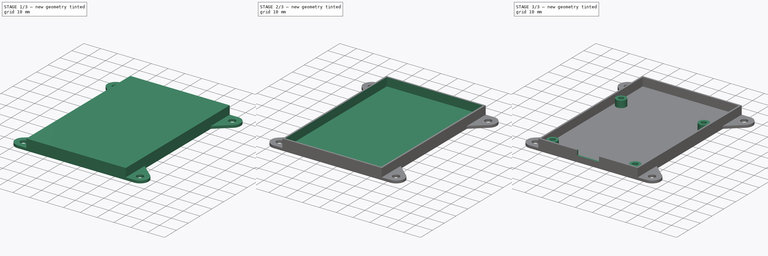
[diagram: build sequence overview — one tinted view per stage of 3, left to right]
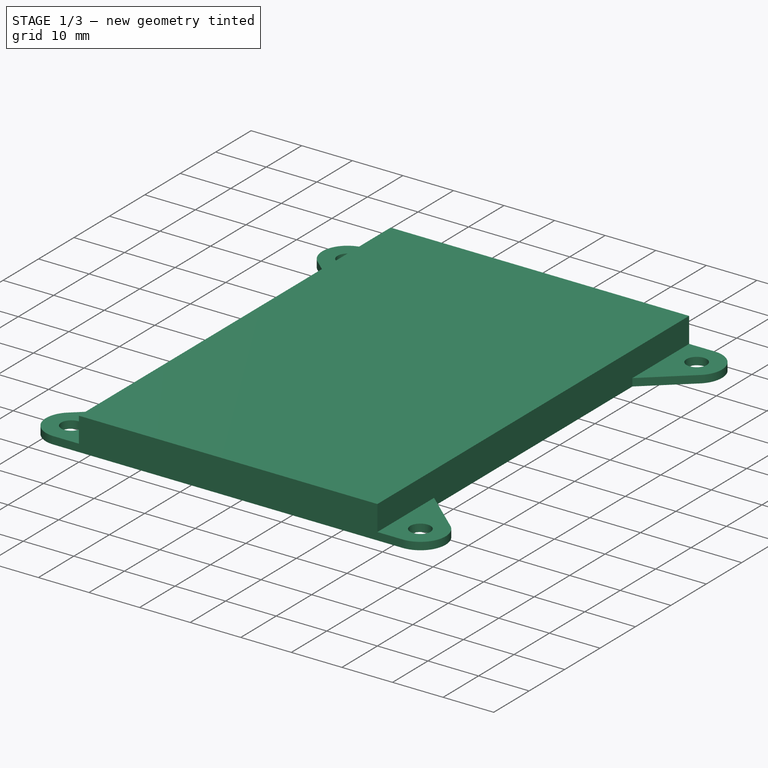
[diagram: stage 1 of 3 — iso view after this stage's code; geometry added in this stage tinted green]
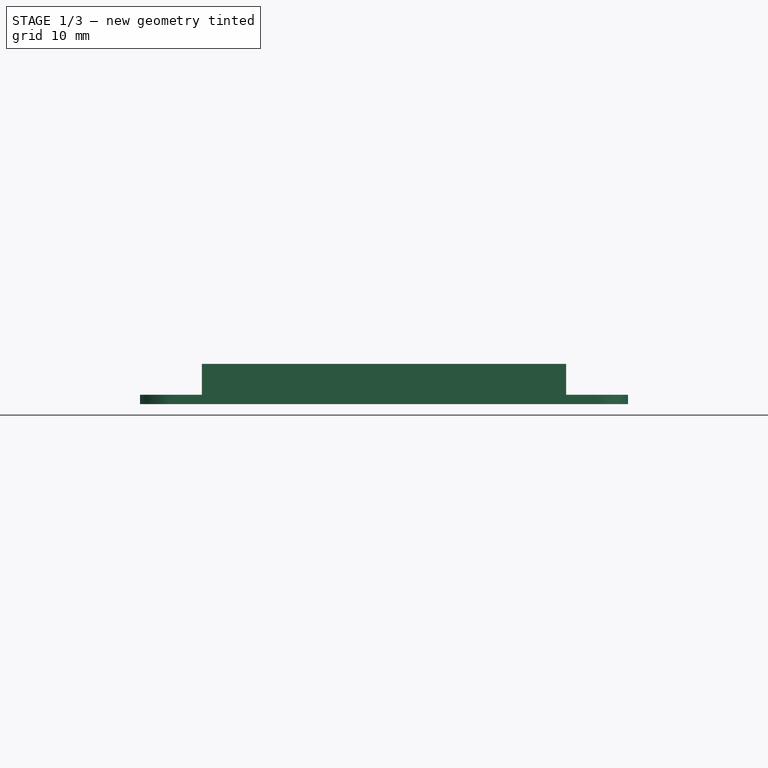
[diagram: stage 1 of 3 — front view after this stage's code; geometry added in this stage tinted green]
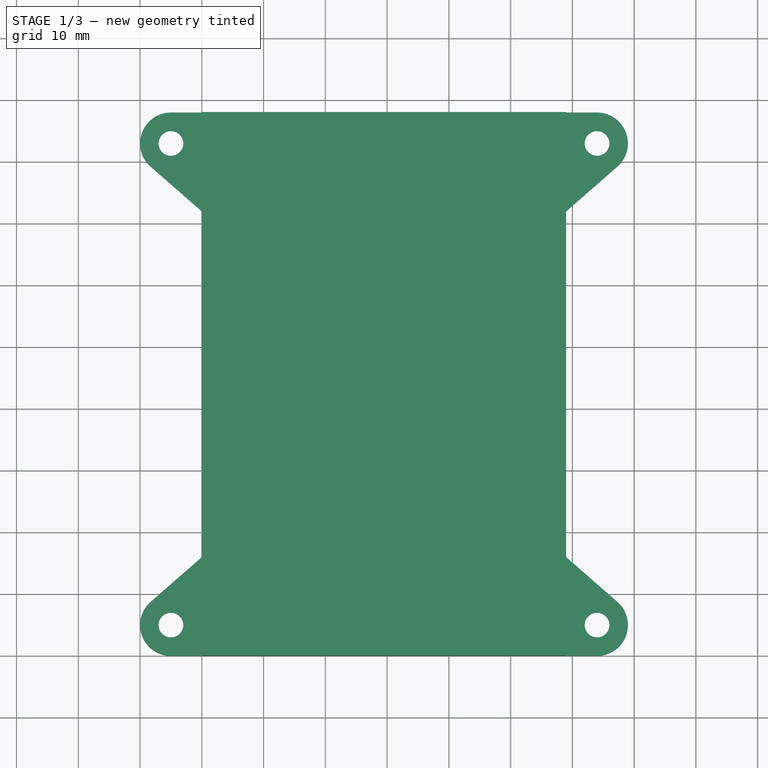
[diagram: stage 1 of 3 — top view after this stage's code; geometry added in this stage tinted green]
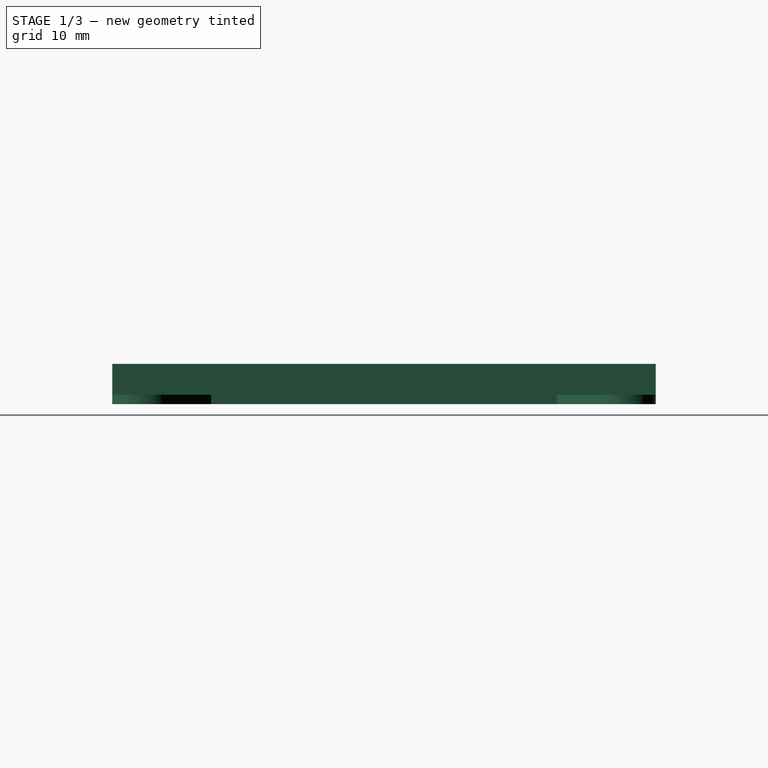
[diagram: stage 1 of 3 — right view after this stage's code; geometry added in this stage tinted green]
FCSTD DOCUMENT  (FreeCAD 0.16R6109 (Git))
Label: CaseBottom
License: All rights reserved
LicenseURL: http://en.wikipedia.org/wiki/All_rights_reserved
objects: Sketcher::SketchObject×5, PartDesign::Pad×3, PartDesign::Pocket×2
note: 15 computed .brp shape members not serialized (recipe doc carries the construction recipe); baked Part::Feature solids carry a one-line shape summary decoded from their .brp

FEATURE [Sketcher::SketchObject] Sketch
  sketch-geometry (24):
    g0: LineSegment StartX=0 StartY=0 StartZ=0 EndX=59 EndY=0 EndZ=0
    g1: LineSegment StartX=59 StartY=88 StartZ=0 EndX=0 EndY=88 EndZ=0
    g2: LineSegment StartX=0 StartY=72 StartZ=0 EndX=0 EndY=16 EndZ=0
    g3: ArcOfCircle CenterX=-5 CenterY=83 CenterZ=0 NormalX=0 NormalY=0 NormalZ=1 Radius=5 StartAngle=1.57079 EndAngle=3.92699
    g4: Circle CenterX=-5 CenterY=83 CenterZ=0 NormalX=0 NormalY=0 NormalZ=1 Radius=2
    g5: LineSegment StartX=-4.99998 StartY=88 StartZ=0 EndX=0 EndY=88 EndZ=0
    g6: LineSegment StartX=-8.53553 StartY=79.4645 StartZ=0 EndX=0 EndY=72 EndZ=0
    g7: LineSegment [constr] StartX=0 StartY=88 StartZ=0 EndX=-8.53553 EndY=79.4645 EndZ=0
    g8: ArcOfCircle CenterX=64 CenterY=83 CenterZ=0 NormalX=0 NormalY=0 NormalZ=1 Radius=5 StartAngle=5.49779 EndAngle=7.85399
    g9: Circle CenterX=64 CenterY=83 CenterZ=0 NormalX=0 NormalY=0 NormalZ=1 Radius=2
    g10: LineSegment [constr] StartX=59 StartY=88 StartZ=0 EndX=67.5355 EndY=79.4645 EndZ=0
    g11: LineSegment StartX=59 StartY=16 StartZ=0 EndX=59 EndY=72 EndZ=0
    g12: LineSegment StartX=59 StartY=88 StartZ=0 EndX=64 EndY=88 EndZ=0
    g13: LineSegment StartX=59 StartY=72 StartZ=0 EndX=67.5355 EndY=79.4645 EndZ=0
    g14: ArcOfCircle CenterX=-5 CenterY=5 CenterZ=0 NormalX=0 NormalY=0 NormalZ=1 Radius=5 StartAngle=2.35619 EndAngle=4.71239
    g15: LineSegment StartX=0 StartY=0 StartZ=0 EndX=-5 EndY=0 EndZ=0
    g16: LineSegment [constr] StartX=0 StartY=0 StartZ=0 EndX=-8.53553 EndY=8.53553 EndZ=0
    g17: LineSegment StartX=-8.53553 StartY=8.53553 StartZ=0 EndX=0 EndY=16 EndZ=0
    g18: Circle CenterX=-5 CenterY=5 CenterZ=0 NormalX=0 NormalY=0 NormalZ=1 Radius=2
    g19: ArcOfCircle CenterX=64 CenterY=5 CenterZ=0 NormalX=0 NormalY=0 NormalZ=1 Radius=5 StartAngle=4.71239 EndAngle=7.06858
    g20: LineSegment [constr] StartX=59 StartY=0 StartZ=0 EndX=67.5355 EndY=8.53553 EndZ=0
    g21: LineSegment StartX=64 StartY=0 StartZ=0 EndX=59 EndY=0 EndZ=0
    g22: Circle CenterX=64 CenterY=5 CenterZ=0 NormalX=0 NormalY=0 NormalZ=1 Radius=2
    g23: LineSegment StartX=59 StartY=16 StartZ=0 EndX=67.5355 EndY=8.53553 EndZ=0
  constraints (69):
    c: Horizontal(g0)
    c: Horizontal(g1)
    c: Vertical(g2)
    c: Coincident(g0,g-1)
    c: Distance(g1) = 59
    c: Radius(g3) = 5
    c: DistanceY(g3,g1) = 5
    c: Coincident(g4,g3)
    c: Radius(g4) = 2
    c: Coincident(g5,g1)
    c: Horizontal(g5)
    c: Coincident(g3,g5)
    c: DistanceY(g2,g1) = 16
    c: PointOnObject(g1,g-2)
    c: Coincident(g6,g3)
    c: Coincident(g6,g2)
    c: DistanceX(g3,g1) = 5
    c: Coincident(g7,g1)
    c: PointOnObject(g3,g7)
    c: PointOnObject(g3,g7)
    c: PointOnObject(g7,g6)
    c: Radius(g8) = 5
    c: Coincident(g9,g8)
    c: Radius(g9) = 2
    c: PointOnObject(g8,g10)
    c: Coincident(g10,g1)
    c: Vertical(g11)
    c: DistanceX(g8,g1) = -5
    c: DistanceY(g8,g1) = 5
    c: Coincident(g12,g1)
    c: Horizontal(g12)
    c: Coincident(g8,g10)
    c: Coincident(g8,g12)
    c: DistanceY(g11,g2) = 0
    c: DistanceX(g1,g11) = 0
    c: DistanceY(g1,g0) = -88
    c: Coincident(g11,g13)
    c: Coincident(g13,g8)
    c: Radius(g14) = 5
    c: DistanceX(g-1,g14) = -5
    c: DistanceY(g-1,g14) = 5
    c: Coincident(g15,g-1)
    c: Horizontal(g15)
    c: Coincident(g16,g-1)
    c: PointOnObject(g14,g16)
    c: PointOnObject(g17,g14)
    c: Coincident(g18,g14)
    c: Radius(g18) = 2
    c: PointOnObject(g14,g17)
    c: Coincident(g14,g15)
    c: Coincident(g2,g17)
    c: Coincident(g14,g16)
    c: DistanceY(g-1,g2) = 16
    c: DistanceX(g-1,g2) = 0
    c: Radius(g19) = 5
    c: DistanceX(g0,g19) = 5
    c: DistanceY(g19,g0) = -5
    c: Coincident(g20,g0)
    c: PointOnObject(g19,g20)
    c: Coincident(g21,g0)
    c: Horizontal(g21)
    c: Coincident(g22,g19)
    c: Radius(g22) = 2
    c: Coincident(g19,g21)
    c: Coincident(g19,g20)
    c: DistanceX(g11,g0) = 0
    c: Coincident(g23,g11)
    c: Coincident(g23,g19)
    c: DistanceY(g11,g0) = -16
FEATURE [PartDesign::Pad] Pad  label="BottomProfile"
  Length = 1.5
  Length2 = 100
  Sketch = -> Sketch
  Type = 0
FEATURE [Sketcher::SketchObject] Sketch001
  ExternalGeometry = -> [Pad]
  Placement = pos=(0,0,1.5) rot=(0,0,1;0rad)
  Support = -> Pad [Face22]
  sketch-geometry (4):
    g0: LineSegment StartX=0 StartY=88 StartZ=0 EndX=59 EndY=88 EndZ=0
    g1: LineSegment StartX=59 StartY=88 StartZ=0 EndX=59 EndY=0 EndZ=0
    g2: LineSegment StartX=59 StartY=0 StartZ=0 EndX=0 EndY=0 EndZ=0
    g3: LineSegment StartX=0 StartY=0 StartZ=0 EndX=0 EndY=88 EndZ=0
  constraints (10):
    c: Coincident(g0,g1)
    c: Coincident(g1,g2)
    c: Coincident(g2,g3)
    c: Coincident(g3,g0)
    c: Horizontal(g0)
    c: Horizontal(g2)
    c: Vertical(g1)
    c: Vertical(g3)
    c: Coincident(g0,g-3)
    c: Coincident(g1,g-4)
FEATURE [PartDesign::Pad] Pad001
  Length = 5
  Length2 = 100
  Sketch = -> Sketch001
  Type = 0
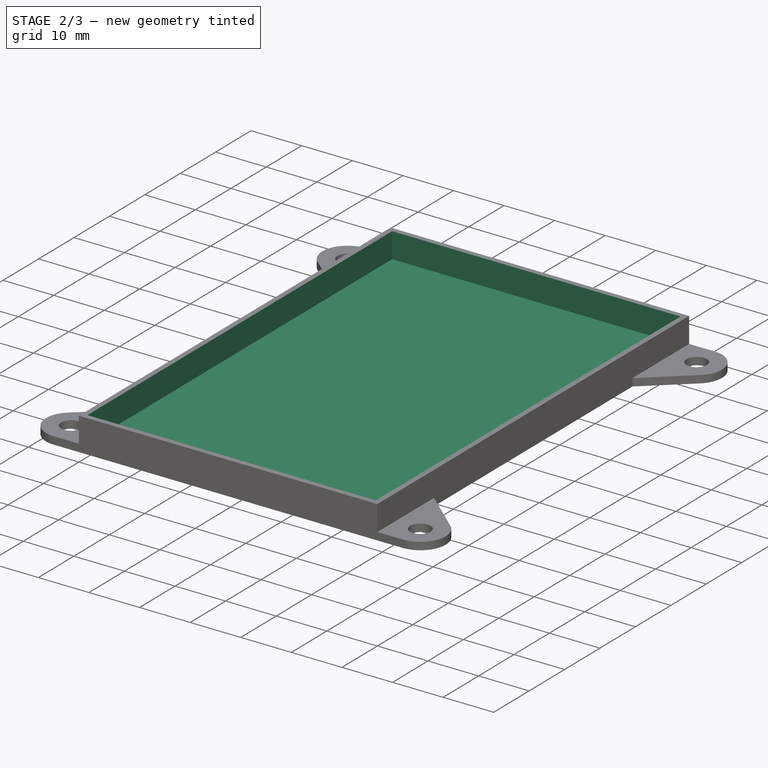
[diagram: stage 2 of 3 — iso view after this stage's code; geometry added in this stage tinted green]
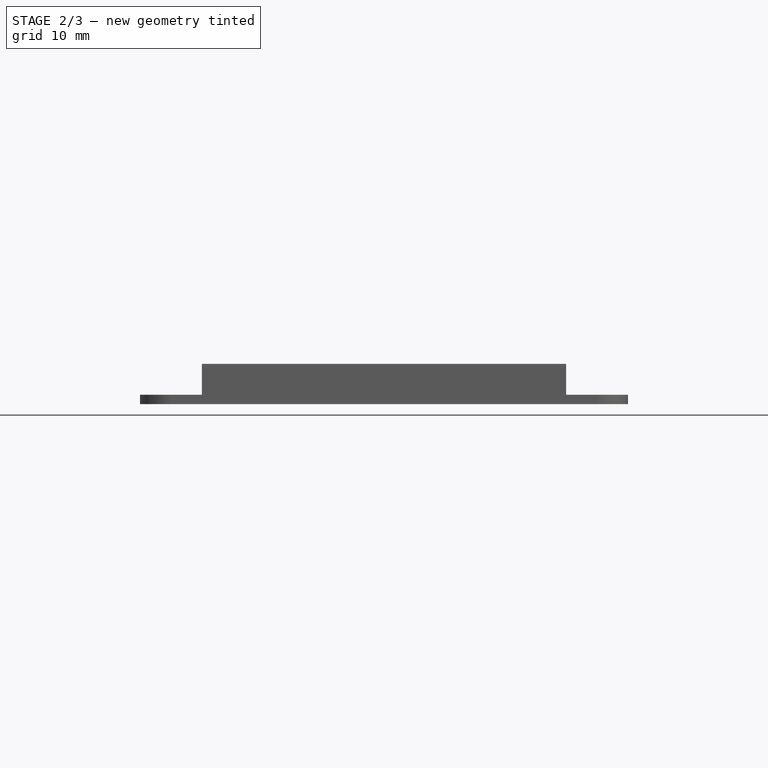
[diagram: stage 2 of 3 — front view after this stage's code; geometry added in this stage tinted green]
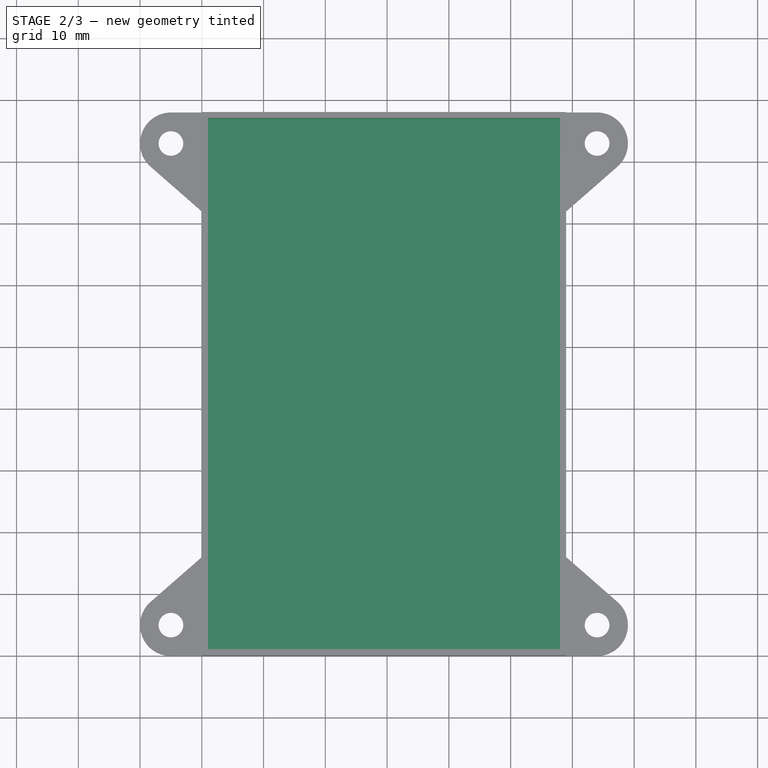
[diagram: stage 2 of 3 — top view after this stage's code; geometry added in this stage tinted green]
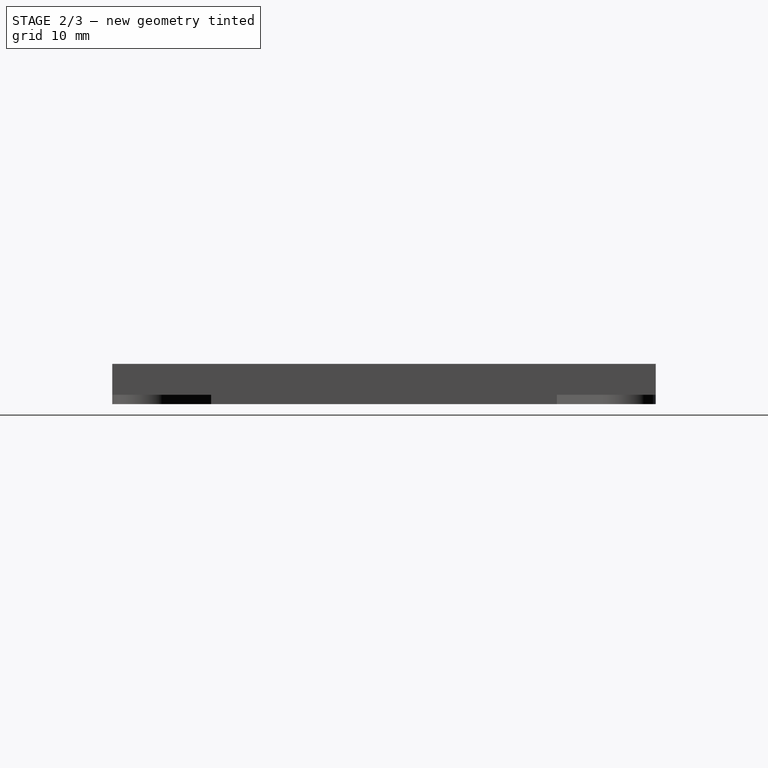
[diagram: stage 2 of 3 — right view after this stage's code; geometry added in this stage tinted green]
FEATURE [Sketcher::SketchObject] Sketch002
  ExternalGeometry = -> [Pad001]
  Placement = pos=(0,0,6.5) rot=(0,0,1;0rad)
  Support = -> Pad001 [Face30]
  sketch-geometry (4):
    g0: LineSegment StartX=1 StartY=87 StartZ=0 EndX=58 EndY=87 EndZ=0
    g1: LineSegment StartX=58 StartY=87 StartZ=0 EndX=58 EndY=1 EndZ=0
    g2: LineSegment StartX=58 StartY=1 StartZ=0 EndX=1 EndY=1 EndZ=0
    g3: LineSegment StartX=1 StartY=1 StartZ=0 EndX=1 EndY=87 EndZ=0
  constraints (12):
    c: Coincident(g0,g1)
    c: Coincident(g1,g2)
    c: Coincident(g2,g3)
    c: Coincident(g3,g0)
    c: Horizontal(g0)
    c: Horizontal(g2)
    c: Vertical(g1)
    c: Vertical(g3)
    c: DistanceX(g-1,g2) = 1
    c: DistanceY(g-1,g2) = 1
    c: DistanceY(g0,g-5) = 1
    c: DistanceX(g0,g-5) = 1
FEATURE [PartDesign::Pocket] Pocket  label="Inside"
  Length = 5
  Sketch = -> Sketch002
  Type = 0
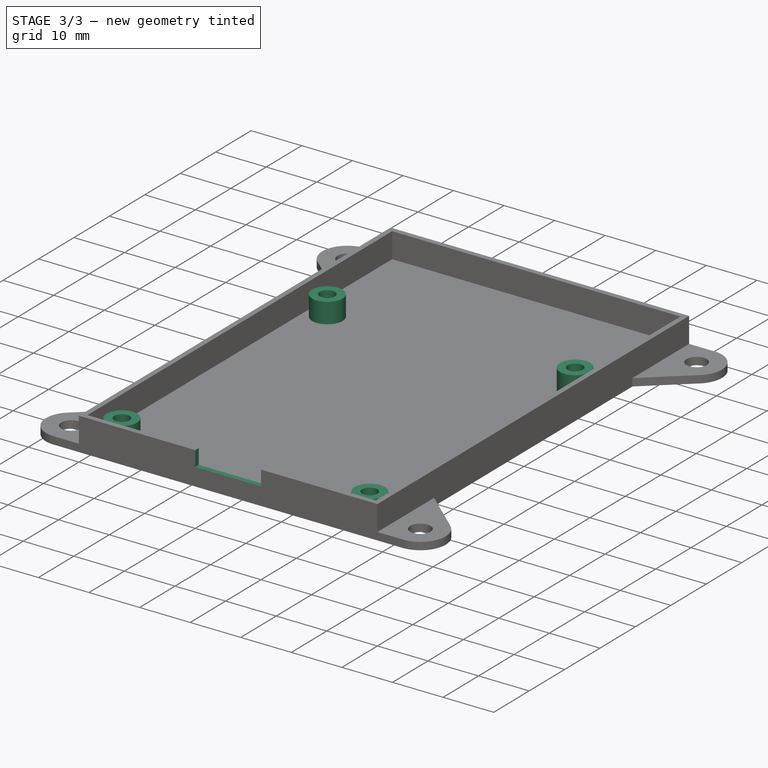
[diagram: stage 3 of 3 — iso view after this stage's code; geometry added in this stage tinted green]
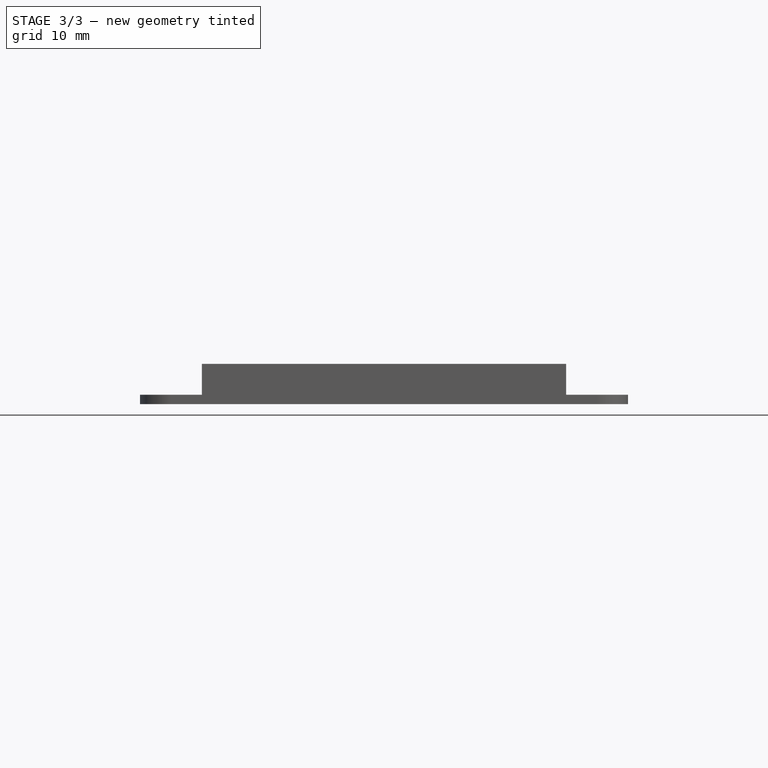
[diagram: stage 3 of 3 — front view after this stage's code; geometry added in this stage tinted green]
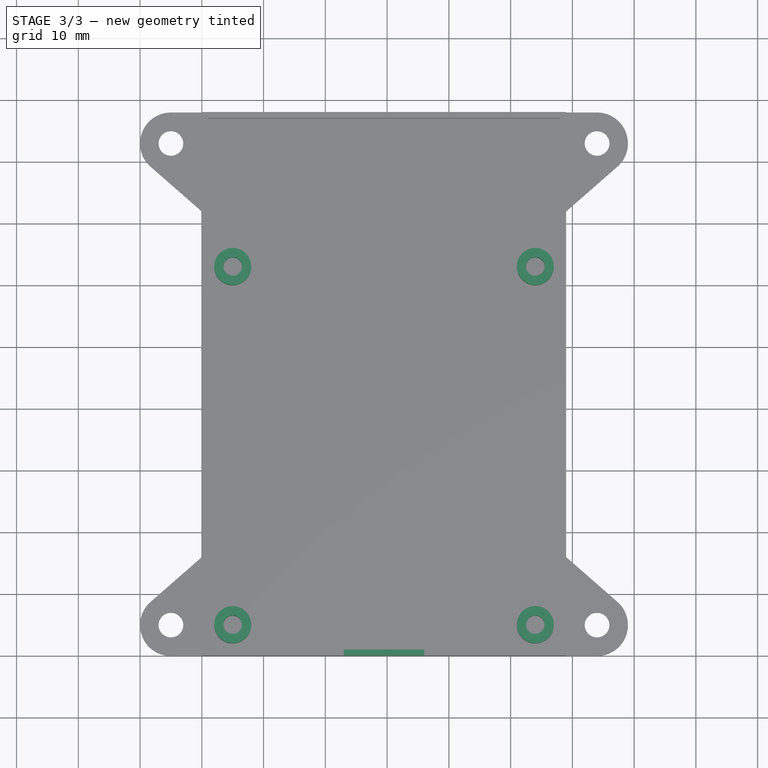
[diagram: stage 3 of 3 — top view after this stage's code; geometry added in this stage tinted green]
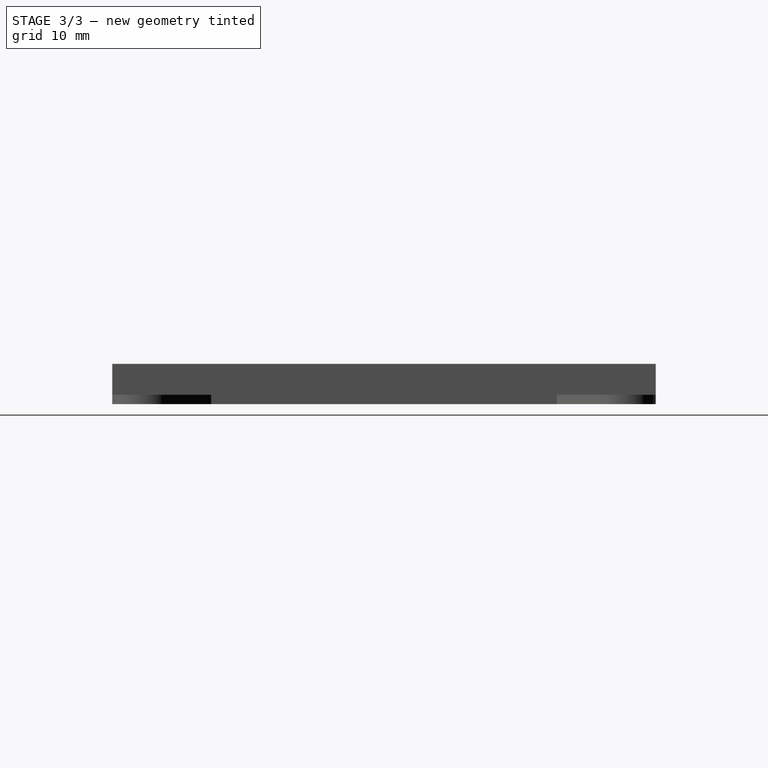
[diagram: stage 3 of 3 — right view after this stage's code; geometry added in this stage tinted green]
FEATURE [Sketcher::SketchObject] Sketch003
  ExternalGeometry = -> [Pocket]
  Placement = pos=(0,0,0) rot=(1,0,0;1.5708rad)
  Support = -> Pocket [Face24]
  sketch-geometry (5):
    g0: LineSegment StartX=23 StartY=6.5 StartZ=0 EndX=36 EndY=6.5 EndZ=0
    g1: LineSegment StartX=36 StartY=6.5 StartZ=0 EndX=36 EndY=3.5 EndZ=0
    g2: LineSegment StartX=36 StartY=3.5 StartZ=0 EndX=23 EndY=3.5 EndZ=0
    g3: LineSegment StartX=23 StartY=3.5 StartZ=0 EndX=23 EndY=6.5 EndZ=0
    g4: LineSegment [constr] StartX=29.5 StartY=9.25598 StartZ=0 EndX=29.5 EndY=-5.23142 EndZ=0
  constraints (16):
    c: Coincident(g0,g1)
    c: Coincident(g1,g2)
    c: Coincident(g2,g3)
    c: Coincident(g3,g0)
    c: Horizontal(g0)
    c: Horizontal(g2)
    c: Vertical(g1)
    c: Vertical(g3)
    c: PointOnObject(g0,g-3)
    c: Distance(g2) = 13
    c: Distance(g1) = 3
    c: Vertical(g4)
    c: DistanceX(g-1,g4) = 29.5
    c: DistanceY(g-1,g4) = -5.23142
    c: Distance(g4) = 14.4874
    c: Symmetric(g2,g1,g4)
FEATURE [PartDesign::Pocket] Pocket001  label="SdCardSlot"
  Length = 5
  Sketch = -> Sketch003
  Type = 2
FEATURE [Sketcher::SketchObject] Sketch004
  Placement = pos=(0,0,1.5) rot=(0,0,1;0rad)
  Support = -> Pocket001 [Face38]
  sketch-geometry (12):
    g0: LineSegment [constr] StartX=5 StartY=63 StartZ=0 EndX=54 EndY=63 EndZ=0
    g1: LineSegment [constr] StartX=54 StartY=63 StartZ=0 EndX=54 EndY=5 EndZ=0
    g2: LineSegment [constr] StartX=54 StartY=5 StartZ=0 EndX=5 EndY=5 EndZ=0
    g3: LineSegment [constr] StartX=5 StartY=5 StartZ=0 EndX=5 EndY=63 EndZ=0
    g4: Circle CenterX=5 CenterY=63 CenterZ=0 NormalX=0 NormalY=0 NormalZ=1 Radius=3
    g5: Circle CenterX=54 CenterY=63 CenterZ=0 NormalX=0 NormalY=0 NormalZ=1 Radius=3
    g6: Circle CenterX=5 CenterY=5 CenterZ=0 NormalX=0 NormalY=0 NormalZ=1 Radius=3
    g7: Circle CenterX=54 CenterY=5 CenterZ=0 NormalX=0 NormalY=0 NormalZ=1 Radius=3
    g8: Circle CenterX=5 CenterY=63 CenterZ=0 NormalX=0 NormalY=0 NormalZ=1 Radius=1.5
    g9: Circle CenterX=54 CenterY=63 CenterZ=0 NormalX=0 NormalY=0 NormalZ=1 Radius=1.5
    g10: Circle CenterX=54 CenterY=5 CenterZ=0 NormalX=0 NormalY=0 NormalZ=1 Radius=1.5
    g11: Circle CenterX=5 CenterY=5 CenterZ=0 NormalX=0 NormalY=0 NormalZ=1 Radius=1.5
  constraints (28):
    c: Coincident(g0,g1)
    c: Coincident(g1,g2)
    c: Coincident(g2,g3)
    c: Coincident(g3,g0)
    c: Horizontal(g0)
    c: Horizontal(g2)
    c: Vertical(g1)
    c: Vertical(g3)
    c: Coincident(g4,g0)
    c: Coincident(g5,g0)
    c: Coincident(g6,g2)
    c: Coincident(g7,g1)
    c: Equal(g7,g6)
    c: Equal(g6,g4)
    c: Equal(g4,g5)
    c: Radius(g5) = 3
    c: Distance(g0) = 49
    c: Distance(g1) = 58
    c: DistanceX(g-1,g2) = 5
    c: DistanceY(g-1,g2) = 5
    c: Coincident(g8,g0)
    c: Coincident(g9,g0)
    c: Coincident(g10,g1)
    c: Coincident(g11,g2)
    c: Equal(g10,g11)
    c: Equal(g11,g8)
    c: Equal(g8,g9)
    c: Radius(g9) = 1.5
FEATURE [PartDesign::Pad] Pad002  label="MountingHoles"
  Length = 4
  Length2 = 100
  Sketch = -> Sketch004
  Type = 0
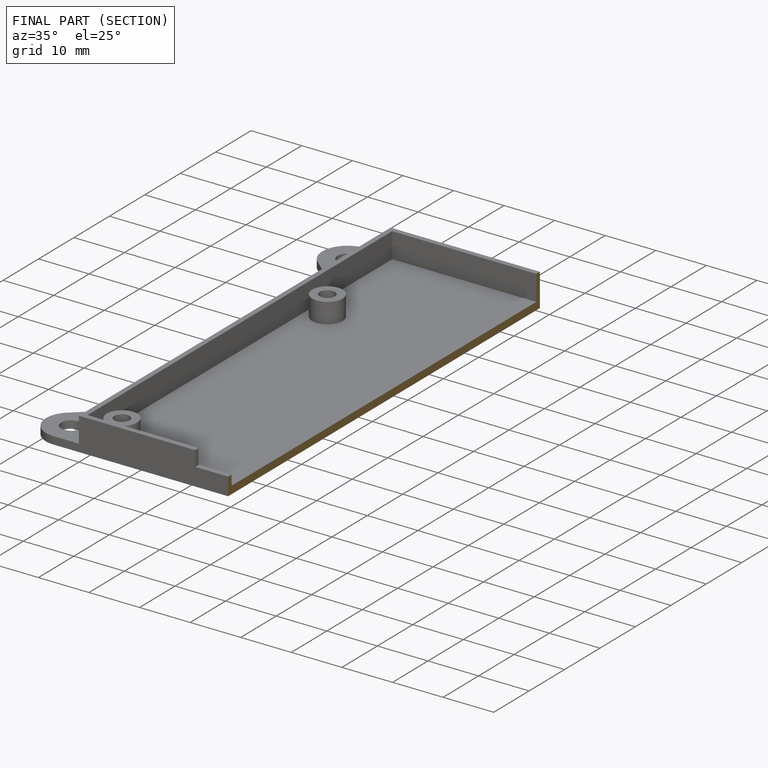
[diagram: finished part — half-section view (interior)]
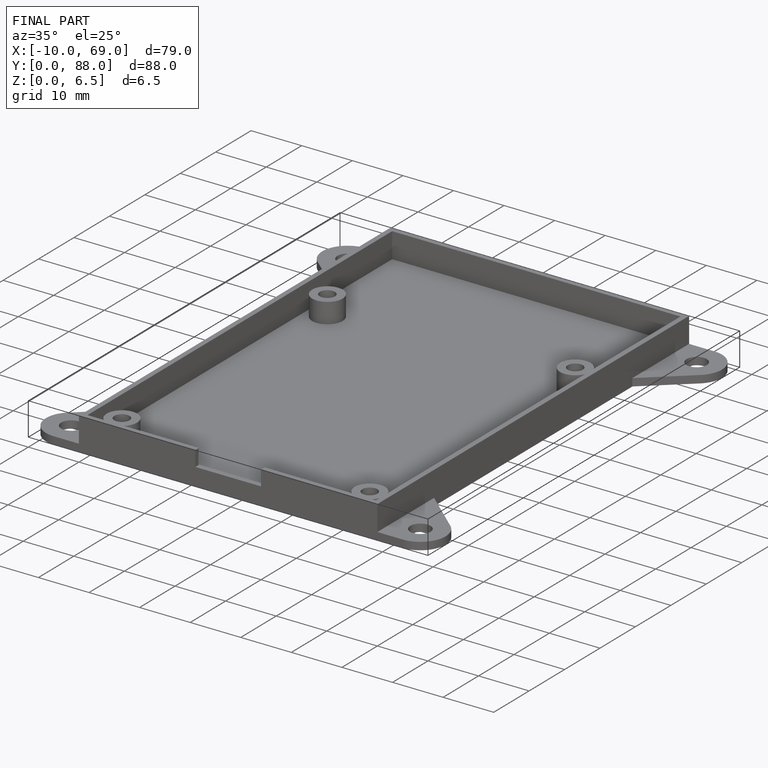
[diagram: finished part — iso view with bounding-box wireframe]
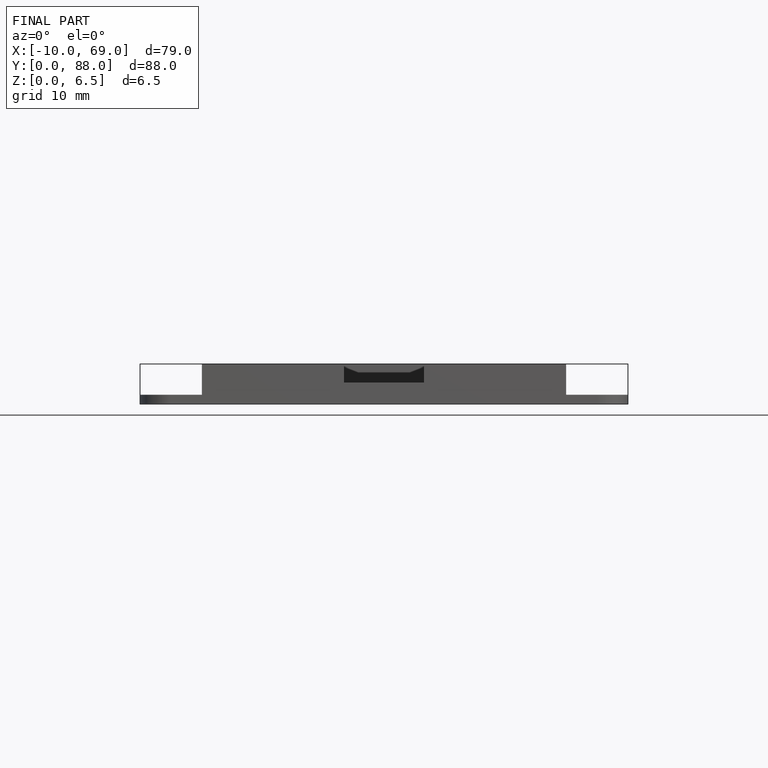
[diagram: finished part — front view with bounding-box wireframe]
